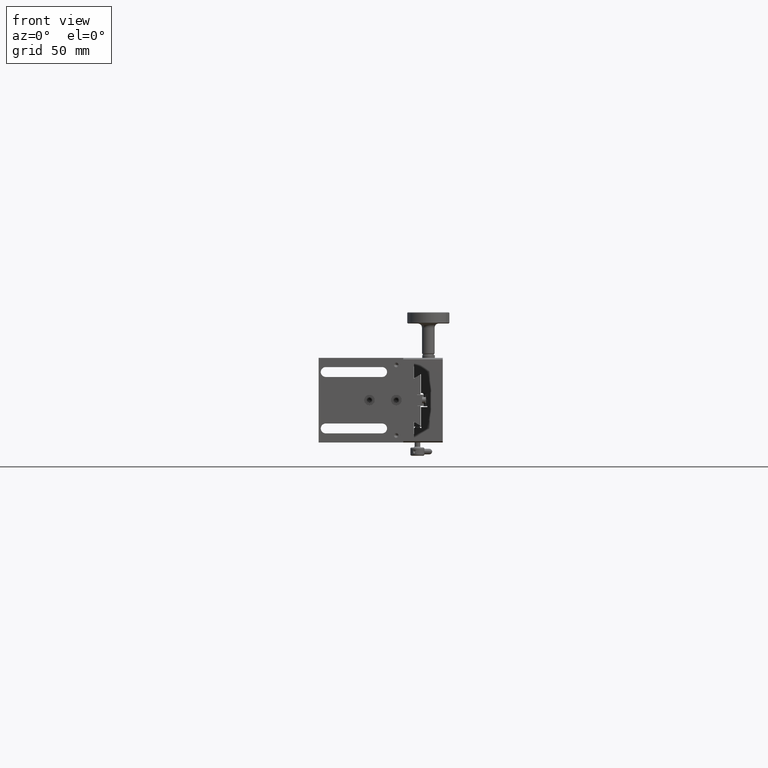
[diagram: clean part render]
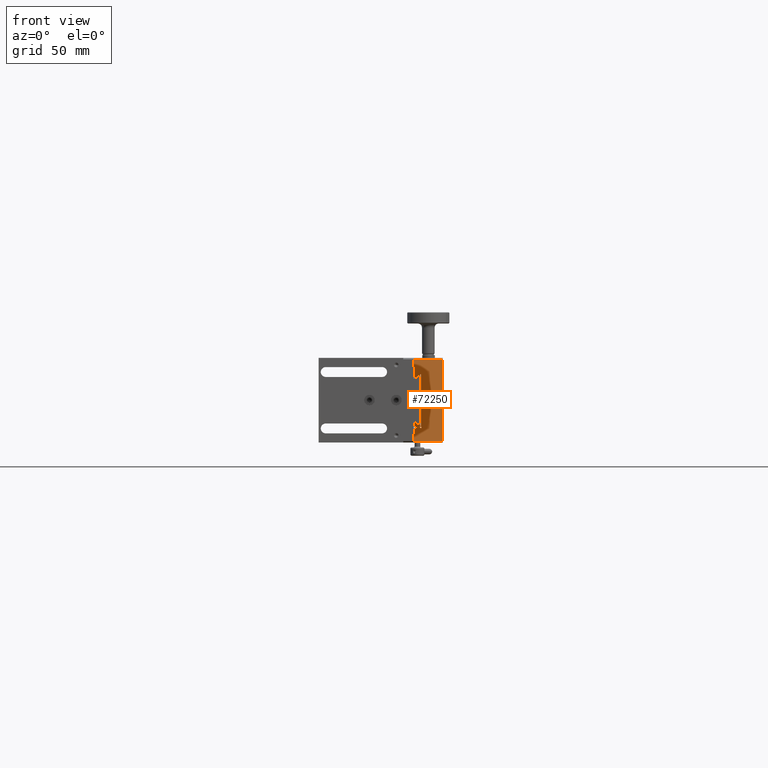
[diagram: same view with one face highlighted and labeled with its STEP entity id]
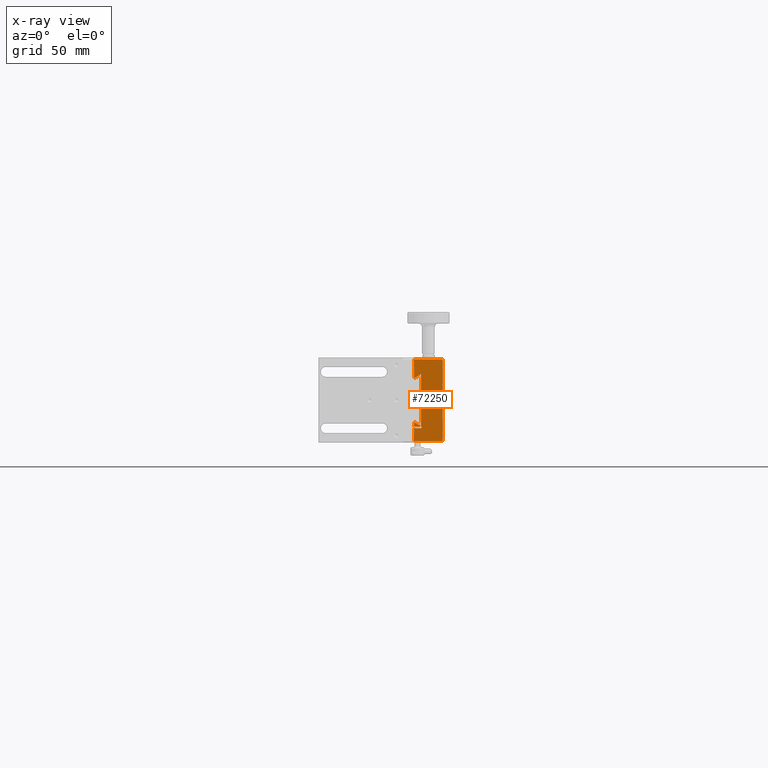
[diagram: x-ray of the same camera — body ghosted, the highlighted face saturated]
A machine part, front view. The second image highlights one B-rep face of the part: STEP entity #72250.
The next image is the same camera in x-ray: the body ghosted, the highlighted face saturated — about 0% of this face is hidden behind the body in this view.
In plain terms, the highlighted planar face has unit normal (0, 1, 0).
Its self-contained STEP definition (entity closure, byte-faithful):
#1528 = EDGE_CURVE ( 'NONE', #84754, #90801, #29140, .T. ) ;
#1948 = ORIENTED_EDGE ( 'NONE', *, *, #88576, .F. ) ;
#2540 = DIRECTION ( 'NONE',  ( 1.443289932012703503E-15, 1.000000000000000000, 6.171113181712964544E-15 ) ) ;
#2548 = ORIENTED_EDGE ( 'NONE', *, *, #33764, .T. ) ;
#3311 = ORIENTED_EDGE ( 'NONE', *, *, #81603, .T. ) ;
#3470 = VERTEX_POINT ( 'NONE', #64448 ) ;
#4611 = CARTESIAN_POINT ( 'NONE',  ( 44.50000000000055422, 144.6851296135901919, -25.00000000000077449 ) ) ;
#4618 = DIRECTION ( 'NONE',  ( -3.021901518559202137E-15, 6.171113181712968488E-15, -1.000000000000000000 ) ) ;
#5119 = VECTOR ( 'NONE', #57059, 1000.000000000000000 ) ;
#5510 = LINE ( 'NONE', #104155, #54548 ) ;
#6266 = EDGE_CURVE ( 'NONE', #52241, #109226, #51553, .T. ) ;
#6272 = DIRECTION ( 'NONE',  ( 1.000000000000000000, -1.443289932012660312E-15, -2.877341228894477022E-15 ) ) ;
#6488 = LINE ( 'NONE', #37685, #42120 ) ;
#6806 = CARTESIAN_POINT ( 'NONE',  ( 39.50000000000057554, 144.6851296135901350, -14.20000000000180407 ) ) ;
#7293 = ORIENTED_EDGE ( 'NONE', *, *, #6266, .T. ) ;
#7685 = VERTEX_POINT ( 'NONE', #76273 ) ;
#9059 = VERTEX_POINT ( 'NONE', #45474 ) ;
#9479 = ORIENTED_EDGE ( 'NONE', *, *, #27216, .F. ) ;
#9547 = EDGE_CURVE ( 'NONE', #78364, #63248, #99727, .T. ) ;
#10631 = DIRECTION ( 'NONE',  ( -3.021901518559202137E-15, 6.171113181712968488E-15, -1.000000000000000000 ) ) ;
#10882 = DIRECTION ( 'NONE',  ( -2.877341228894468344E-15, 6.171113181712968488E-15, -1.000000000000000000 ) ) ;
#11742 = VERTEX_POINT ( 'NONE', #82626 ) ;
#12011 = LINE ( 'NONE', #45806, #81767 ) ;
#12147 = DIRECTION ( 'NONE',  ( -1.000000000000000000, 1.443289932012660312E-15, 2.877341228894477022E-15 ) ) ;
#13051 = EDGE_CURVE ( 'NONE', #11742, #3470, #5510, .T. ) ;
#13130 = CARTESIAN_POINT ( 'NONE',  ( 44.50000000000055422, 144.6851296135901919, -25.00000000000077449 ) ) ;
#13227 = DIRECTION ( 'NONE',  ( 0.8660254037844625774, 1.835630844706896814E-15, -0.4999999999999584777 ) ) ;
#13507 = CARTESIAN_POINT ( 'NONE',  ( 39.50000000000046185, 144.6851296135903624, -54.00000000000179767 ) ) ;
#14321 = LINE ( 'NONE', #80810, #17782 ) ;
#14382 = VECTOR ( 'NONE', #55954, 1000.000000000000000 ) ;
#14616 = CARTESIAN_POINT ( 'NONE',  ( 60.00000000000044054, 144.6851296135903624, -59.00000000000185452 ) ) ;
#16134 = ORIENTED_EDGE ( 'NONE', *, *, #82798, .F. ) ;
#16209 = DIRECTION ( 'NONE',  ( 2.877341228894468344E-15, -6.171113181712968488E-15, 1.000000000000000000 ) ) ;
#16466 = VERTEX_POINT ( 'NONE', #27970 ) ;
#17759 = CARTESIAN_POINT ( 'NONE',  ( 60.00000000000061107, 144.6851296135900498, -1.000000000001856959 ) ) ;
#17782 = VECTOR ( 'NONE', #13227, 1000.000000000000114 ) ;
#18181 = CARTESIAN_POINT ( 'NONE',  ( 39.70000000000048601, 144.6851296135903340, -49.88675134594958394 ) ) ;
#18281 = LINE ( 'NONE', #85883, #33905 ) ;
#18637 = LINE ( 'NONE', #52986, #94961 ) ;
#20252 = EDGE_CURVE ( 'NONE', #76013, #42968, #22881, .T. ) ;
#20934 = CARTESIAN_POINT ( 'NONE',  ( 40.01961524227174039, 144.6851296135903340, -45.80000000000179483 ) ) ;
#21792 = CARTESIAN_POINT ( 'NONE',  ( 44.70000000000047891, 144.6851296135903340, -48.88675134594959104 ) ) ;
#21915 = DIRECTION ( 'NONE',  ( 2.638069025311460496E-15, -6.171113181712969277E-15, 1.000000000000000000 ) ) ;
#22641 = VERTEX_POINT ( 'NONE', #4611 ) ;
#22881 = LINE ( 'NONE', #57754, #100886 ) ;
#23001 = LINE ( 'NONE', #90618, #26105 ) ;
#23273 = CARTESIAN_POINT ( 'NONE',  ( 60.00000000000062528, 144.6851296135900498, -1.000000000001870948 ) ) ;
#23412 = ORIENTED_EDGE ( 'NONE', *, *, #9547, .T. ) ;
#24047 = CARTESIAN_POINT ( 'NONE',  ( 40.01961524227182565, 144.6851296135901350, -14.20000000000150386 ) ) ;
#25045 = LINE ( 'NONE', #6806, #35714 ) ;
#25256 = ORIENTED_EDGE ( 'NONE', *, *, #56734, .F. ) ;
#26105 = VECTOR ( 'NONE', #40179, 1000.000000000000000 ) ;
#26811 = CARTESIAN_POINT ( 'NONE',  ( 39.50000000000061817, 144.6851296135900498, -1.000000000001808553 ) ) ;
#27216 = EDGE_CURVE ( 'NONE', #88837, #102284, #108586, .T. ) ;
#27958 = ORIENTED_EDGE ( 'NONE', *, *, #13051, .T. ) ;
#27970 = CARTESIAN_POINT ( 'NONE',  ( 44.50000000000052580, 144.6851296135902487, -35.00000000000285638 ) ) ;
#29140 = LINE ( 'NONE', #106138, #52814 ) ;
#29651 = EDGE_CURVE ( 'NONE', #7685, #102284, #25045, .T. ) ;
#30848 = EDGE_CURVE ( 'NONE', #3470, #7685, #73707, .T. ) ;
#31078 = VERTEX_POINT ( 'NONE', #31577 ) ;
#31577 = CARTESIAN_POINT ( 'NONE',  ( 39.70000000000046469, 144.6851296135903624, -54.00000000000179767 ) ) ;
#31909 = CARTESIAN_POINT ( 'NONE',  ( 44.50000000000059686, 144.6851296135901066, -11.61324865405401852 ) ) ;
#32207 = ORIENTED_EDGE ( 'NONE', *, *, #35909, .F. ) ;
#33558 = ORIENTED_EDGE ( 'NONE', *, *, #29651, .T. ) ;
#33764 = EDGE_CURVE ( 'NONE', #84754, #63117, #73350, .T. ) ;
#33905 = VECTOR ( 'NONE', #12147, 1000.000000000000000 ) ;
#35714 = VECTOR ( 'NONE', #6272, 1000.000000000000000 ) ;
#35909 = EDGE_CURVE ( 'NONE', #9059, #16466, #59168, .T. ) ;
#36527 = EDGE_CURVE ( 'NONE', #22641, #88837, #63538, .T. ) ;
#37513 = DIRECTION ( 'NONE',  ( -1.000000000000000000, 1.443289932012659129E-15, 3.070088281780788877E-15 ) ) ;
#37685 = CARTESIAN_POINT ( 'NONE',  ( 49.00000000000052580, 144.6851296135902487, -35.00000000000286349 ) ) ;
#38687 = AXIS2_PLACEMENT_3D ( 'NONE', #78980, #2540, #87297 ) ;
#38945 = EDGE_CURVE ( 'NONE', #11742, #109226, #99168, .T. ) ;
#40105 = VECTOR ( 'NONE', #4618, 1000.000000000000000 ) ;
#40179 = DIRECTION ( 'NONE',  ( -2.877341228894468739E-15, 6.171113181712969277E-15, -1.000000000000000000 ) ) ;
#40279 = ORIENTED_EDGE ( 'NONE', *, *, #86693, .T. ) ;
#40539 = EDGE_LOOP ( 'NONE', ( #65282, #27958, #89304, #33558, #9479, #49430, #1948, #62191, #25256, #32207, #16134, #40279, #77875, #93679, #68410, #23412, #3311, #97091, #108647, #2548, #88119, #7293 ) ) ;
#41371 = VERTEX_POINT ( 'NONE', #63307 ) ;
#42120 = VECTOR ( 'NONE', #80331, 1000.000000000000000 ) ;
#42968 = VERTEX_POINT ( 'NONE', #64669 ) ;
#45474 = CARTESIAN_POINT ( 'NONE',  ( 44.50000000000048317, 144.6851296135903340, -48.38675134594959815 ) ) ;
#45806 = CARTESIAN_POINT ( 'NONE',  ( 44.50000000000055422, 144.6851296135901919, -25.00000000000077449 ) ) ;
#46028 = CARTESIAN_POINT ( 'NONE',  ( 49.00000000000052580, 144.6851296135902487, -35.00000000000286349 ) ) ;
#47869 = EDGE_CURVE ( 'NONE', #41371, #74037, #105455, .T. ) ;
#49430 = ORIENTED_EDGE ( 'NONE', *, *, #36527, .F. ) ;
#49806 = EDGE_CURVE ( 'NONE', #80707, #78364, #18637, .T. ) ;
#51553 = LINE ( 'NONE', #17759, #82931 ) ;
#52241 = VERTEX_POINT ( 'NONE', #23273 ) ;
#52496 = CARTESIAN_POINT ( 'NONE',  ( 44.50000000000048317, 144.6851296135903340, -48.38675134594959815 ) ) ;
#52814 = VECTOR ( 'NONE', #21915, 1000.000000000000000 ) ;
#52986 = CARTESIAN_POINT ( 'NONE',  ( 44.70000000000047891, 144.6851296135903340, -48.88675134594959104 ) ) ;
#53396 = CARTESIAN_POINT ( 'NONE',  ( 44.70000000000047891, 144.6851296135903340, -49.88675134594959815 ) ) ;
#54359 = CARTESIAN_POINT ( 'NONE',  ( 39.70000000000060680, 144.6851296135900782, -6.000000000001799449 ) ) ;
#54548 = VECTOR ( 'NONE', #79767, 1000.000000000000000 ) ;
#54904 = LINE ( 'NONE', #54359, #77897 ) ;
#55405 = CARTESIAN_POINT ( 'NONE',  ( 39.50000000000057554, 144.6851296135901350, -14.50000000000180478 ) ) ;
#55943 = DIRECTION ( 'NONE',  ( 3.116613432477476587E-15, -6.171113181712969277E-15, 1.000000000000000000 ) ) ;
#55954 = DIRECTION ( 'NONE',  ( -0.8660254037844650199, 4.335482337005533276E-15, -0.4999999999999544253 ) ) ;
#56523 = DIRECTION ( 'NONE',  ( -3.021901518559202137E-15, 6.171113181712968488E-15, -1.000000000000000000 ) ) ;
#56734 = EDGE_CURVE ( 'NONE', #16466, #76013, #6488, .T. ) ;
#57059 = DIRECTION ( 'NONE',  ( -1.000000000000000000, 1.443289932012660312E-15, 2.877341228894477022E-15 ) ) ;
#57754 = CARTESIAN_POINT ( 'NONE',  ( 49.00000000000052580, 144.6851296135902487, -35.00000000000286349 ) ) ;
#59168 = LINE ( 'NONE', #52496, #76770 ) ;
#62191 = ORIENTED_EDGE ( 'NONE', *, *, #20252, .F. ) ;
#63117 = VERTEX_POINT ( 'NONE', #69695 ) ;
#63248 = VERTEX_POINT ( 'NONE', #18181 ) ;
#63307 = CARTESIAN_POINT ( 'NONE',  ( 39.70000000000050022, 144.6851296135903340, -45.80000000000179483 ) ) ;
#63538 = LINE ( 'NONE', #13130, #90939 ) ;
#63924 = LINE ( 'NONE', #13507, #80242 ) ;
#64448 = CARTESIAN_POINT ( 'NONE',  ( 39.70000000000060680, 144.6851296135900782, -6.000000000001799449 ) ) ;
#64669 = CARTESIAN_POINT ( 'NONE',  ( 49.00000000000054712, 144.6851296135901634, -25.00000000000078870 ) ) ;
#65282 = ORIENTED_EDGE ( 'NONE', *, *, #38945, .F. ) ;
#65936 = EDGE_CURVE ( 'NONE', #31078, #90801, #63924, .T. ) ;
#67478 = DIRECTION ( 'NONE',  ( 2.747756131573448364E-15, -6.171113181712968488E-15, 1.000000000000000000 ) ) ;
#68275 = CARTESIAN_POINT ( 'NONE',  ( 39.50000000000045475, 144.6851296135904192, -59.00000000000179057 ) ) ;
#68410 = ORIENTED_EDGE ( 'NONE', *, *, #49806, .T. ) ;
#69695 = CARTESIAN_POINT ( 'NONE',  ( 60.00000000000045475, 144.6851296135903624, -59.00000000000185452 ) ) ;
#70579 = CARTESIAN_POINT ( 'NONE',  ( 39.50000000000047606, 144.6851296135903340, -48.88675134594958394 ) ) ;
#70740 = VECTOR ( 'NONE', #55943, 1000.000000000000000 ) ;
#72250 = ADVANCED_FACE ( 'NONE', ( #78445 ), #85672, .F. ) ;
#73350 = LINE ( 'NONE', #14616, #91089 ) ;
#73707 = LINE ( 'NONE', #91419, #87130 ) ;
#74037 = VERTEX_POINT ( 'NONE', #101763 ) ;
#76013 = VERTEX_POINT ( 'NONE', #46028 ) ;
#76273 = CARTESIAN_POINT ( 'NONE',  ( 39.70000000000058549, 144.6851296135901350, -14.20000000000180407 ) ) ;
#76770 = VECTOR ( 'NONE', #67478, 1000.000000000000000 ) ;
#77875 = ORIENTED_EDGE ( 'NONE', *, *, #47869, .T. ) ;
#77897 = VECTOR ( 'NONE', #10631, 1000.000000000000000 ) ;
#78364 = VERTEX_POINT ( 'NONE', #53396 ) ;
#78445 = FACE_OUTER_BOUND ( 'NONE', #40539, .T. ) ;
#78980 = CARTESIAN_POINT ( 'NONE',  ( 60.00000000000053291, 144.6851296135901919, -30.00000000000185807 ) ) ;
#79362 = EDGE_CURVE ( 'NONE', #52241, #63117, #23001, .T. ) ;
#79440 = DIRECTION ( 'NONE',  ( 1.000000000000000000, -1.443289932012660312E-15, -2.877341228894477022E-15 ) ) ;
#79767 = DIRECTION ( 'NONE',  ( 1.000000000000000000, -1.443289932012660312E-15, -2.877341228894477022E-15 ) ) ;
#80242 = VECTOR ( 'NONE', #97731, 1000.000000000000000 ) ;
#80331 = DIRECTION ( 'NONE',  ( 1.000000000000000000, -1.443289932012661496E-15, -2.684594176008165166E-15 ) ) ;
#80707 = VERTEX_POINT ( 'NONE', #21792 ) ;
#80810 = CARTESIAN_POINT ( 'NONE',  ( 44.50000000000048317, 144.6851296135903340, -48.38675134594959815 ) ) ;
#81603 = EDGE_CURVE ( 'NONE', #63248, #31078, #54904, .T. ) ;
#81767 = VECTOR ( 'NONE', #37513, 1000.000000000000000 ) ;
#82626 = CARTESIAN_POINT ( 'NONE',  ( 39.50000000000061107, 144.6851296135900782, -6.000000000001799449 ) ) ;
#82798 = EDGE_CURVE ( 'NONE', #108591, #9059, #14321, .T. ) ;
#82931 = VECTOR ( 'NONE', #92574, 1000.000000000000000 ) ;
#84754 = VERTEX_POINT ( 'NONE', #68275 ) ;
#85672 = PLANE ( 'NONE',  #38687 ) ;
#85883 = CARTESIAN_POINT ( 'NONE',  ( 39.50000000000048317, 144.6851296135903340, -45.80000000000179483 ) ) ;
#86693 = EDGE_CURVE ( 'NONE', #108591, #41371, #18281, .T. ) ;
#87130 = VECTOR ( 'NONE', #56523, 1000.000000000000000 ) ;
#87297 = DIRECTION ( 'NONE',  ( -2.877341228894468344E-15, 6.171113181712968488E-15, -1.000000000000000000 ) ) ;
#88119 = ORIENTED_EDGE ( 'NONE', *, *, #79362, .F. ) ;
#88576 = EDGE_CURVE ( 'NONE', #42968, #22641, #12011, .T. ) ;
#88837 = VERTEX_POINT ( 'NONE', #31909 ) ;
#89304 = ORIENTED_EDGE ( 'NONE', *, *, #30848, .T. ) ;
#90618 = CARTESIAN_POINT ( 'NONE',  ( 60.00000000000044764, 144.6851296135903908, -60.00000000000185452 ) ) ;
#90801 = VERTEX_POINT ( 'NONE', #104227 ) ;
#90939 = VECTOR ( 'NONE', #96257, 1000.000000000000000 ) ;
#91072 = DIRECTION ( 'NONE',  ( 1.000000000000000000, -1.443289932012658143E-15, -3.215823858353366019E-15 ) ) ;
#91089 = VECTOR ( 'NONE', #91072, 1000.000000000000000 ) ;
#91419 = CARTESIAN_POINT ( 'NONE',  ( 39.70000000000060680, 144.6851296135900782, -6.000000000001799449 ) ) ;
#92510 = VECTOR ( 'NONE', #79440, 1000.000000000000000 ) ;
#92574 = DIRECTION ( 'NONE',  ( -1.000000000000000000, 1.443289932012662482E-15, 2.538858599435588025E-15 ) ) ;
#93679 = ORIENTED_EDGE ( 'NONE', *, *, #109230, .T. ) ;
#94961 = VECTOR ( 'NONE', #10882, 1000.000000000000000 ) ;
#96257 = DIRECTION ( 'NONE',  ( 3.006926326215488719E-15, -6.171113181712969277E-15, 1.000000000000000000 ) ) ;
#97091 = ORIENTED_EDGE ( 'NONE', *, *, #65936, .T. ) ;
#97731 = DIRECTION ( 'NONE',  ( -1.000000000000000000, 1.443289932012660312E-15, 2.877341228894477022E-15 ) ) ;
#99168 = LINE ( 'NONE', #55405, #70740 ) ;
#99727 = LINE ( 'NONE', #106405, #5119 ) ;
#100256 = CARTESIAN_POINT ( 'NONE',  ( 39.50000000000057554, 144.6851296135901350, -14.50000000000180478 ) ) ;
#100886 = VECTOR ( 'NONE', #16209, 1000.000000000000000 ) ;
#101763 = CARTESIAN_POINT ( 'NONE',  ( 39.70000000000047891, 144.6851296135903340, -48.88675134594958394 ) ) ;
#102284 = VERTEX_POINT ( 'NONE', #24047 ) ;
#103820 = LINE ( 'NONE', #70579, #92510 ) ;
#104155 = CARTESIAN_POINT ( 'NONE',  ( 39.50000000000061107, 144.6851296135900782, -6.000000000001799449 ) ) ;
#104227 = CARTESIAN_POINT ( 'NONE',  ( 39.50000000000046185, 144.6851296135903624, -54.00000000000179767 ) ) ;
#105455 = LINE ( 'NONE', #106553, #40105 ) ;
#106138 = CARTESIAN_POINT ( 'NONE',  ( 39.50000000000045475, 144.6851296135904192, -60.00000000000179767 ) ) ;
#106405 = CARTESIAN_POINT ( 'NONE',  ( 39.50000000000047606, 144.6851296135903340, -49.88675134594958394 ) ) ;
#106553 = CARTESIAN_POINT ( 'NONE',  ( 39.70000000000060680, 144.6851296135900782, -6.000000000001799449 ) ) ;
#108586 = LINE ( 'NONE', #100256, #14382 ) ;
#108591 = VERTEX_POINT ( 'NONE', #20934 ) ;
#108647 = ORIENTED_EDGE ( 'NONE', *, *, #1528, .F. ) ;
#109226 = VERTEX_POINT ( 'NONE', #26811 ) ;
#109230 = EDGE_CURVE ( 'NONE', #74037, #80707, #103820, .T. ) ;